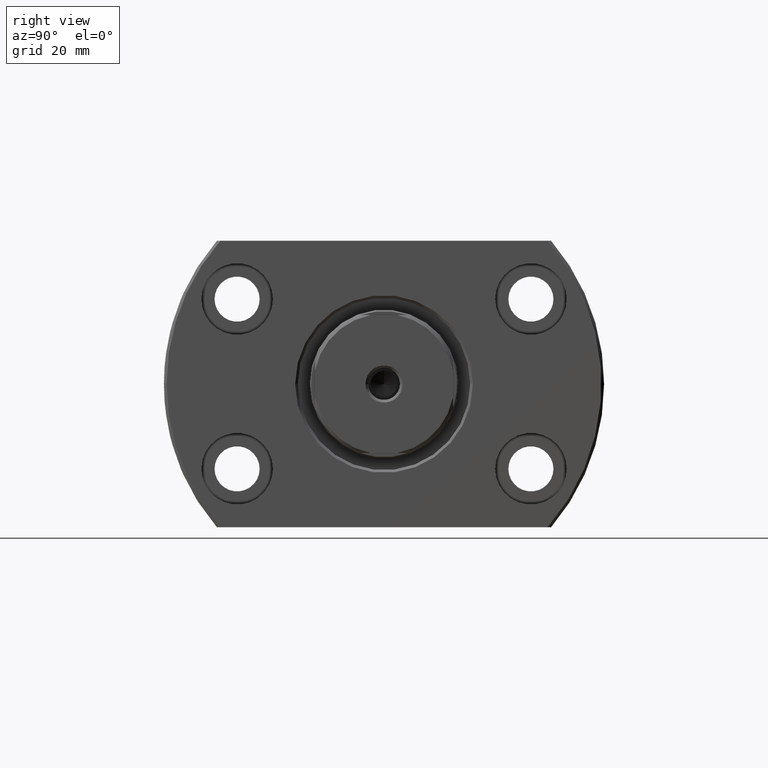
[diagram: clean part render]
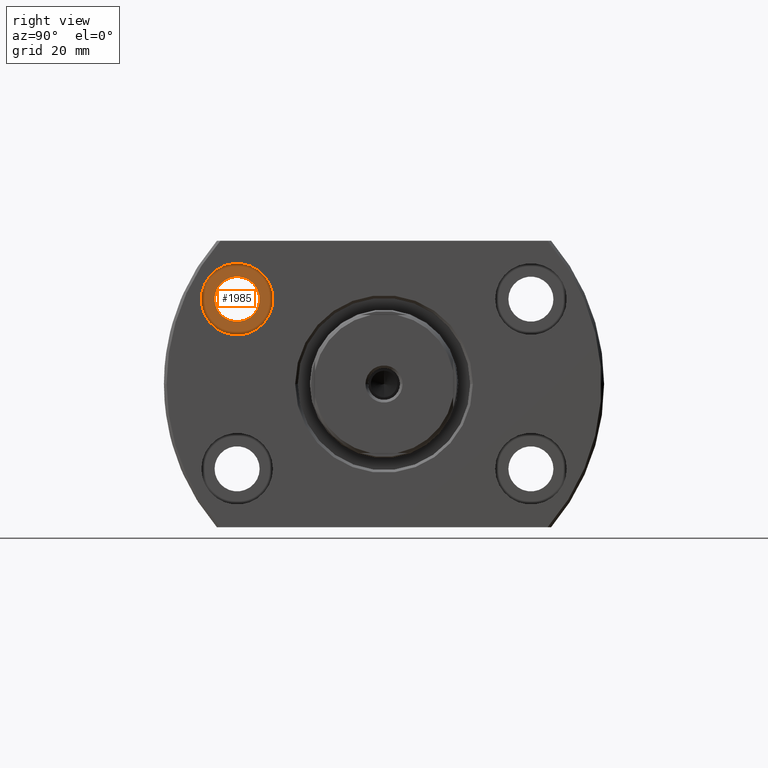
[diagram: same view with one face highlighted and labeled with its STEP entity id]
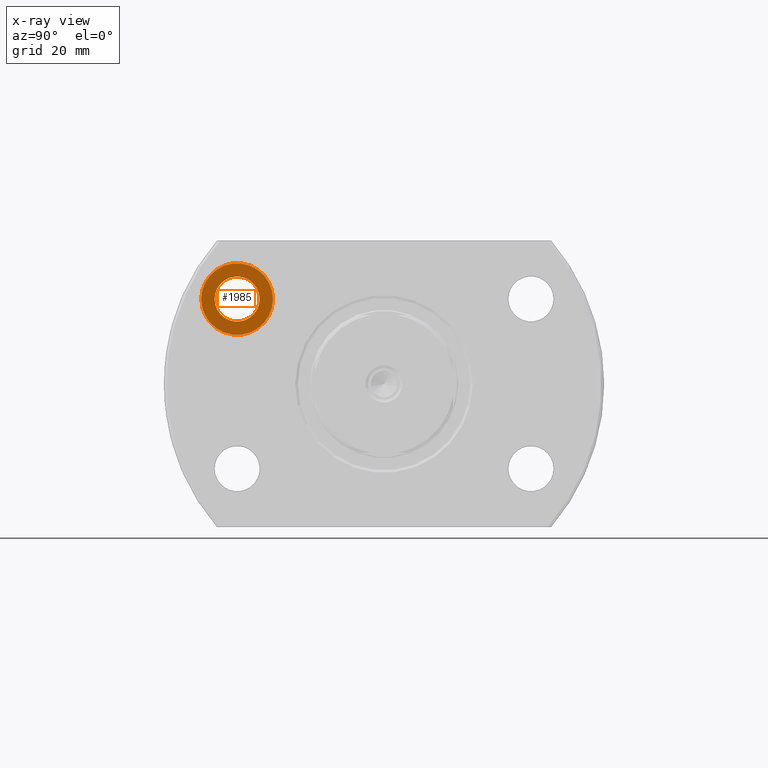
[diagram: x-ray of the same camera — body ghosted, the highlighted face saturated]
A machine part, right view. The second image highlights one B-rep face of the part: STEP entity #1985.
The next image is the same camera in x-ray: the body ghosted, the highlighted face saturated — about 0% of this face is hidden behind the body in this view.
In plain terms, the highlighted planar face has unit normal (1, -0, 0).
Its self-contained STEP definition (entity closure, byte-faithful):
#37 = CARTESIAN_POINT ( 'NONE',  ( 23.69999999999939533, -20.95000000000068141, 16.00000000000000000 ) ) ;
#111 = EDGE_CURVE ( 'NONE', #2335, #2155, #946, .T. ) ;
#202 = VERTEX_POINT ( 'NONE', #37 ) ;
#203 = ORIENTED_EDGE ( 'NONE', *, *, #695, .T. ) ;
#270 = DIRECTION ( 'NONE',  ( 2.857191607491211908E-14, 1.000000000000000000, 0.000000000000000000 ) ) ;
#290 = DIRECTION ( 'NONE',  ( 1.000000000000000000, -2.884016039175094104E-14, 0.000000000000000000 ) ) ;
#537 = DIRECTION ( 'NONE',  ( 2.878355989768924761E-14, 1.000000000000000000, 0.000000000000000000 ) ) ;
#546 = EDGE_LOOP ( 'NONE', ( #203, #681 ) ) ;
#681 = ORIENTED_EDGE ( 'NONE', *, *, #1110, .T. ) ;
#695 = EDGE_CURVE ( 'NONE', #202, #1343, #2030, .T. ) ;
#828 = CARTESIAN_POINT ( 'NONE',  ( 23.69999999999900808, -34.45000000000068496, 16.00000000000000000 ) ) ;
#946 = CIRCLE ( 'NONE', #2515, 4.250000000000000000 ) ;
#1007 = CARTESIAN_POINT ( 'NONE',  ( 23.69999999999999929, -6.833035451227405098E-13, 0.000000000000000000 ) ) ;
#1020 = CARTESIAN_POINT ( 'NONE',  ( 23.69999999999919993, -27.70000000000067786, 16.00000000000000000 ) ) ;
#1042 = DIRECTION ( 'NONE',  ( 1.000000000000000000, -2.884016039175094104E-14, 0.000000000000000000 ) ) ;
#1110 = EDGE_CURVE ( 'NONE', #1343, #202, #1736, .T. ) ;
#1238 = AXIS2_PLACEMENT_3D ( 'NONE', #2727, #1042, #270 ) ;
#1262 = DIRECTION ( 'NONE',  ( 2.857191607491211908E-14, 1.000000000000000000, 0.000000000000000000 ) ) ;
#1313 = DIRECTION ( 'NONE',  ( 2.884016039175094104E-14, 1.000000000000000000, 0.000000000000000000 ) ) ;
#1343 = VERTEX_POINT ( 'NONE', #828 ) ;
#1347 = ORIENTED_EDGE ( 'NONE', *, *, #2510, .F. ) ;
#1391 = CARTESIAN_POINT ( 'NONE',  ( 23.69999999999907914, -31.95000000000067786, 16.00000000000000000 ) ) ;
#1652 = CARTESIAN_POINT ( 'NONE',  ( 23.69999999999932072, -23.45000000000067786, 16.00000000000000000 ) ) ;
#1722 = DIRECTION ( 'NONE',  ( 2.878355989768924761E-14, 1.000000000000000000, 0.000000000000000000 ) ) ;
#1736 = CIRCLE ( 'NONE', #3201, 6.749999999999999112 ) ;
#1770 = DIRECTION ( 'NONE',  ( 1.000000000000000000, -2.884016039175094104E-14, 0.000000000000000000 ) ) ;
#1957 = CIRCLE ( 'NONE', #1238, 4.250000000000000000 ) ;
#1985 = ADVANCED_FACE ( 'NONE', ( #2747, #3004 ), #2767, .T. ) ;
#2030 = CIRCLE ( 'NONE', #2454, 6.749999999999999112 ) ;
#2155 = VERTEX_POINT ( 'NONE', #1391 ) ;
#2210 = CARTESIAN_POINT ( 'NONE',  ( 23.69999999999919993, -27.70000000000067786, 16.00000000000000000 ) ) ;
#2284 = DIRECTION ( 'NONE',  ( 1.000000000000000000, -2.884016039175094104E-14, 0.000000000000000000 ) ) ;
#2335 = VERTEX_POINT ( 'NONE', #1652 ) ;
#2454 = AXIS2_PLACEMENT_3D ( 'NONE', #1020, #1770, #537 ) ;
#2510 = EDGE_CURVE ( 'NONE', #2155, #2335, #1957, .T. ) ;
#2512 = DIRECTION ( 'NONE',  ( 1.000000000000000000, -2.884016039175094104E-14, 0.000000000000000000 ) ) ;
#2515 = AXIS2_PLACEMENT_3D ( 'NONE', #3037, #290, #1262 ) ;
#2727 = CARTESIAN_POINT ( 'NONE',  ( 23.69999999999919993, -27.70000000000067786, 16.00000000000000000 ) ) ;
#2747 = FACE_BOUND ( 'NONE', #3113, .T. ) ;
#2767 = PLANE ( 'NONE',  #3208 ) ;
#2825 = ORIENTED_EDGE ( 'NONE', *, *, #111, .F. ) ;
#3004 = FACE_OUTER_BOUND ( 'NONE', #546, .T. ) ;
#3037 = CARTESIAN_POINT ( 'NONE',  ( 23.69999999999919993, -27.70000000000067786, 16.00000000000000000 ) ) ;
#3113 = EDGE_LOOP ( 'NONE', ( #2825, #1347 ) ) ;
#3201 = AXIS2_PLACEMENT_3D ( 'NONE', #2210, #2512, #1722 ) ;
#3208 = AXIS2_PLACEMENT_3D ( 'NONE', #1007, #2284, #1313 ) ;